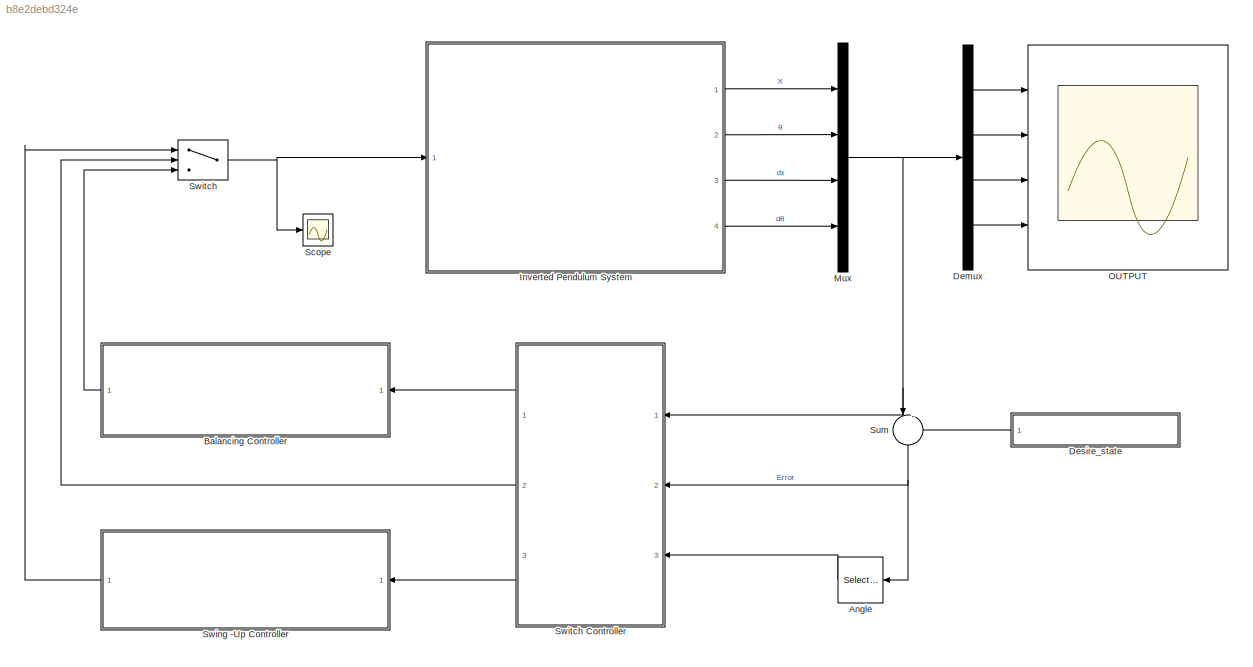
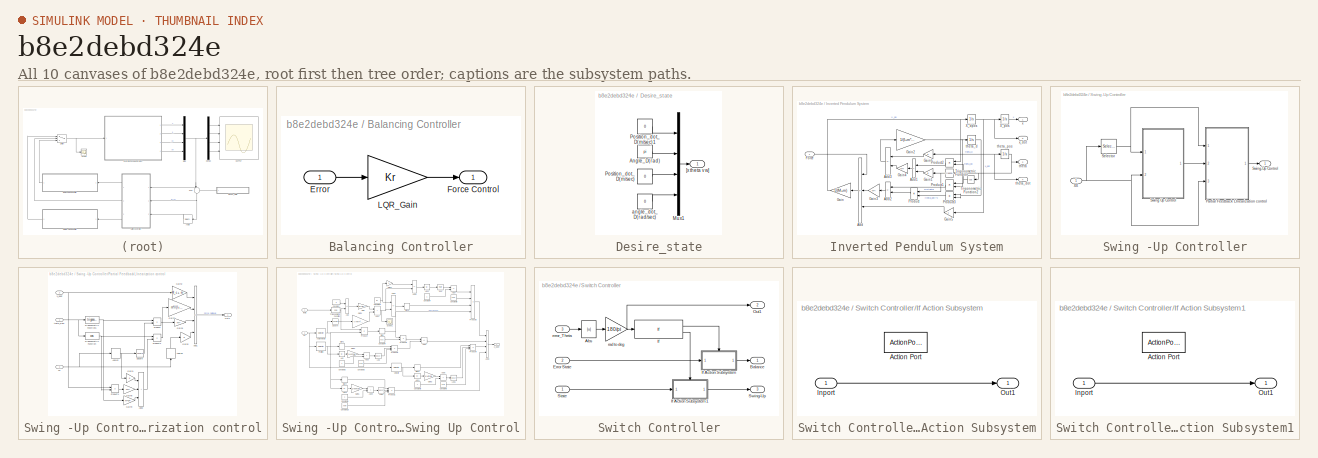
[diagram: thumbnail index - all 10 canvases of the model, root first then tree order]
MODEL slx_b8e2debd324e
KIND model
CONFIG AbsTol = auto
CONFIG EnableMultiTasking = off
CONFIG FixedStep = 0.01
CONFIG MaxStep = auto
CONFIG MinStep = auto
CONFIG RelTol = 1e-3
CONFIG SampleTimeConstraint = Unconstrained
CONFIG SolverName = VariableStepAuto
CONFIG StartTime = 0.0
CONFIG StopTime = 25
BLOCK [Selector] Angle
  IndexOptions = Index vector (dialog)
  Indices = [2]
  InputPortWidth = 4
  NameLocation = top
  OutputSizes = 1
  Ports = [1, 1]
BLOCK [SubSystem] Balancing Controller
  Ports = [1, 1]
  RequestExecContextInheritance = off
  ShowPortLabels = none
BLOCK [Inport] Balancing Controller/Error
BLOCK [Outport] Balancing Controller/Force Control
BLOCK [Gain] Balancing Controller/LQR_Gain
  Gain = Kr
  Multiplication = Matrix(K*u)
BLOCK [Demux] Demux
  Ports = [1, 4]
BLOCK [SubSystem] Desire_state
  NameLocation = top
  Ports = [0, 1]
  RequestExecContextInheritance = off
BLOCK [Constant] Desire_state/Angle_D(rad)
  Value = pi
BLOCK [Mux] Desire_state/Mux1
  DisplayOption = bar
  Ports = [4, 1]
BLOCK [Constant] Desire_state/Position_dot_D(m//sec)
  Value = 0
BLOCK [Constant] Desire_state/Position_dot_D(m//sec)1
  Value = 0
BLOCK [Outport] Desire_state/[x theta v w]
  VectorParamsAs1DForOutWhenUnconnected = off
BLOCK [Constant] Desire_state/angle_dot_D(rad//sec)
  Value = 0
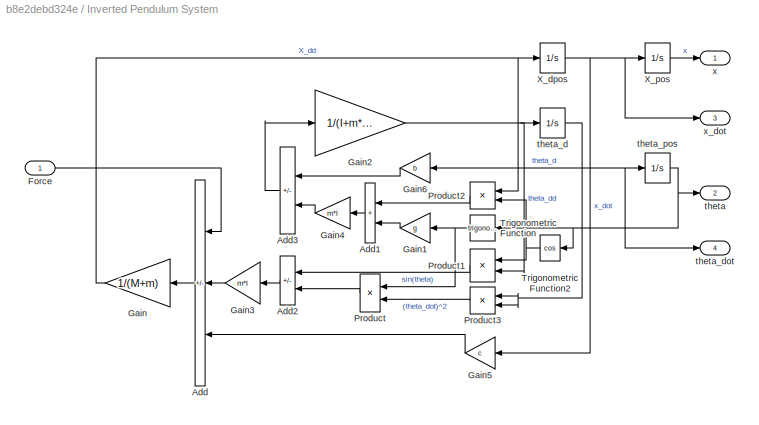
BLOCK [SubSystem] Inverted Pendulum System
  Ports = [1, 4]
  RequestExecContextInheritance = off
BLOCK [Sum] Inverted Pendulum System/Add
  IconShape = rectangular
  Inputs = ++-
  NameLocation = top
  Ports = [3, 1]
BLOCK [Sum] Inverted Pendulum System/Add1
  IconShape = rectangular
  NameLocation = top
  Ports = [2, 1]
BLOCK [Sum] Inverted Pendulum System/Add2
  IconShape = rectangular
  Inputs = -+
  NameLocation = top
  Ports = [2, 1]
BLOCK [Sum] Inverted Pendulum System/Add3
  IconShape = rectangular
  Inputs = --
  NameLocation = top
  Ports = [2, 1]
BLOCK [Inport] Inverted Pendulum System/Force
BLOCK [Gain] Inverted Pendulum System/Gain
  Gain = 1/(M+m)
  NameLocation = top
BLOCK [Gain] Inverted Pendulum System/Gain1
  Gain = g
  NameLocation = top
BLOCK [Gain] Inverted Pendulum System/Gain2
  Gain = 1/(I+m*(l^2))
BLOCK [Gain] Inverted Pendulum System/Gain3
  Gain = m*l
  NameLocation = top
BLOCK [Gain] Inverted Pendulum System/Gain4
  Gain = m*l
  NameLocation = top
BLOCK [Gain] Inverted Pendulum System/Gain5
  Gain = c
  NameLocation = top
BLOCK [Gain] Inverted Pendulum System/Gain6
  Gain = b
  NameLocation = top
BLOCK [Product] Inverted Pendulum System/Product
  NameLocation = top
  Ports = [2, 1]
BLOCK [Product] Inverted Pendulum System/Product1
  NameLocation = top
  Ports = [2, 1]
BLOCK [Product] Inverted Pendulum System/Product2
  NameLocation = top
  Ports = [2, 1]
BLOCK [Product] Inverted Pendulum System/Product3
  NameLocation = top
  Ports = [2, 1]
BLOCK [Trigonometry] Inverted Pendulum System/Trigonometric Function
  NameLocation = top
  Ports = [1, 1]
BLOCK [Trigonometry] Inverted Pendulum System/Trigonometric Function2
  NameLocation = top
  Operator = cos
  Ports = [1, 1]
BLOCK [Integrator] Inverted Pendulum System/X_dpos
  Ports = [1, 1]
BLOCK [Integrator] Inverted Pendulum System/X_pos
  InitialCondition = 0.001
  Ports = [1, 1]
BLOCK [Outport] Inverted Pendulum System/theta
  Port = 2
  VectorParamsAs1DForOutWhenUnconnected = off
BLOCK [Integrator] Inverted Pendulum System/theta_d
  Ports = [1, 1]
BLOCK [Outport] Inverted Pendulum System/theta_dot
  Port = 4
  VectorParamsAs1DForOutWhenUnconnected = off
BLOCK [Integrator] Inverted Pendulum System/theta_pos
  InitialCondition = -0.001*(pi/180)
  Ports = [1, 1]
BLOCK [Outport] Inverted Pendulum System/x
  VectorParamsAs1DForOutWhenUnconnected = off
BLOCK [Outport] Inverted Pendulum System/x_dot
  Port = 3
  VectorParamsAs1DForOutWhenUnconnected = off
BLOCK [Mux] Mux
  DisplayOption = bar
  Ports = [4, 1]
BLOCK [Scope] OUTPUT
  Floating = off
  NumInputPorts = 4
  Ports = [4]
  ScopeSpecificationString = Simulink.scopes.TimeScopeBlockCfg('CurrentConfiguration', extmgr.ConfigurationSet(extmgr.Configuration('Core','General UI',true,'FigureColor',[1 1 1]),extmgr.Configuration('Core','Source UI',true),extmgr.Configuration('Sources','WiredSimulink',true,'DataLoggingVariableName','ScopeData1','DataLogging',true,'DataLoggingSaveFormat','StructureWithTime'),extmgr.Configuration('Visuals','Time Domain',tru...<+4068ch>
BLOCK [Scope] Scope
  Floating = off
  NumInputPorts = 1
  Ports = [1]
  ScopeSpecificationString = Simulink.scopes.TimeScopeBlockCfg('CurrentConfiguration', extmgr.ConfigurationSet(extmgr.Configuration('Core','General UI',true),extmgr.Configuration('Core','Source UI',true),extmgr.Configuration('Sources','WiredSimulink',true,'DataLoggingVariableName','ScopeData2','DataLogging',true,'DataLoggingSaveFormat','StructureWithTime'),extmgr.Configuration('Visuals','Time Domain',true,'SerializedDisplays'...<+1462ch>
BLOCK [Sum] Sum
  Inputs = |-+
  NameLocation = left
  Ports = [2, 1]
BLOCK [SubSystem] Swing -Up Controller
  Ports = [1, 1]
  RequestExecContextInheritance = off
  ShowPortLabels = none
BLOCK [SubSystem] Swing -Up Controller/Partial Feedback LInearization control
  NameLocation = top
  Ports = [3, 1]
  RequestExecContextInheritance = off
BLOCK [Sum] Swing -Up Controller/Partial Feedback LInearization control/Add1
  IconShape = rectangular
  Inputs = +--+
  Ports = [4, 1]
BLOCK [Sum] Swing -Up Controller/Partial Feedback LInearization control/Add2
  IconShape = rectangular
  Inputs = +++
  Ports = [3, 1]
BLOCK [Selector] Swing -Up Controller/Partial Feedback LInearization control/Angle2
  IndexOptions = Index vector (dialog)
  Indices = [4]
  InputPortWidth = 4
  OutputSizes = 1
  Ports = [1, 1]
BLOCK [Selector] Swing -Up Controller/Partial Feedback LInearization control/Angle3
  IndexOptions = Index vector (dialog)
  Indices = [3]
  InputPortWidth = 4
  NameLocation = right
  OutputSizes = 1
  Ports = [1, 1]
BLOCK [Gain] Swing -Up Controller/Partial Feedback LInearization control/Gain1
  Gain = b
BLOCK [Gain] Swing -Up Controller/Partial Feedback LInearization control/Gain2
  Gain = M_c + m
BLOCK [Gain] Swing -Up Controller/Partial Feedback LInearization control/Gain5
  Gain = 0
BLOCK [Gain] Swing -Up Controller/Partial Feedback LInearization control/Gain6
  Gain = m*l
BLOCK [Gain] Swing -Up Controller/Partial Feedback LInearization control/Gain7
  Gain = m*l/(I+m*l^2)
BLOCK [Gain] Swing -Up Controller/Partial Feedback LInearization control/Gain8
  Gain = m*l
BLOCK [Gain] Swing -Up Controller/Partial Feedback LInearization control/Gain9
  Gain = m*g*l
BLOCK [Outport] Swing -Up Controller/Partial Feedback LInearization control/Out1
  NameLocation = top
  VectorParamsAs1DForOutWhenUnconnected = off
BLOCK [Product] Swing -Up Controller/Partial Feedback LInearization control/Product
  Ports = [2, 1]
BLOCK [Product] Swing -Up Controller/Partial Feedback LInearization control/Product1
  Ports = [2, 1]
BLOCK [Product] Swing -Up Controller/Partial Feedback LInearization control/Product2
  Ports = [2, 1]
BLOCK [Math] Swing -Up Controller/Partial Feedback LInearization control/Square
  Operator = square
  Ports = [1, 1]
  RndMeth = Zero
  SignedPower = on
BLOCK [Trigonometry] Swing -Up Controller/Partial Feedback LInearization control/Trigonometric Function
  Operator = cos
  Ports = [1, 1]
BLOCK [Trigonometry] Swing -Up Controller/Partial Feedback LInearization control/Trigonometric Function1
  Ports = [1, 1]
BLOCK [Inport] Swing -Up Controller/Partial Feedback LInearization control/XX
  Port = 3
BLOCK [Inport] Swing -Up Controller/Partial Feedback LInearization control/X_ddot
  Port = 2
BLOCK [Inport] Swing -Up Controller/Partial Feedback LInearization control/theta_sign
BLOCK [Selector] Swing -Up Controller/Selector
  IndexOptions = Index vector (dialog)
  Indices = [2]
  InputPortWidth = 4
  OutputSizes = 1
  Ports = [1, 1]
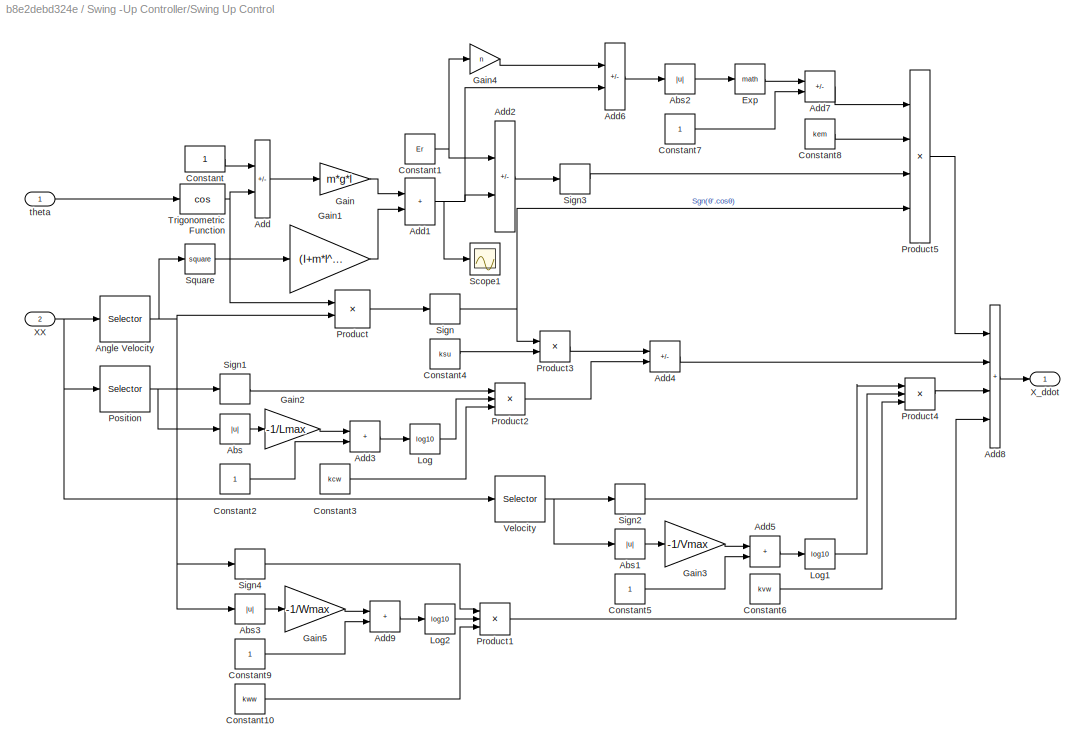
BLOCK [SubSystem] Swing -Up Controller/Swing Up Control
  Ports = [2, 1]
  RequestExecContextInheritance = off
BLOCK [Abs] Swing -Up Controller/Swing Up Control/Abs
  SaturateOnIntegerOverflow = off
BLOCK [Abs] Swing -Up Controller/Swing Up Control/Abs1
  SaturateOnIntegerOverflow = off
BLOCK [Abs] Swing -Up Controller/Swing Up Control/Abs2
  SaturateOnIntegerOverflow = off
BLOCK [Abs] Swing -Up Controller/Swing Up Control/Abs3
  SaturateOnIntegerOverflow = off
BLOCK [Sum] Swing -Up Controller/Swing Up Control/Add
  IconShape = rectangular
  Inputs = +-
  Ports = [2, 1]
BLOCK [Sum] Swing -Up Controller/Swing Up Control/Add1
  IconShape = rectangular
  Ports = [2, 1]
BLOCK [Sum] Swing -Up Controller/Swing Up Control/Add2
  IconShape = rectangular
  Inputs = -+
  Ports = [2, 1]
BLOCK [Sum] Swing -Up Controller/Swing Up Control/Add3
  IconShape = rectangular
  Ports = [2, 1]
BLOCK [Sum] Swing -Up Controller/Swing Up Control/Add4
  IconShape = rectangular
  Inputs = -+
  Ports = [2, 1]
BLOCK [Sum] Swing -Up Controller/Swing Up Control/Add5
  IconShape = rectangular
  Ports = [2, 1]
BLOCK [Sum] Swing -Up Controller/Swing Up Control/Add6
  IconShape = rectangular
  Inputs = -+
  Ports = [2, 1]
BLOCK [Sum] Swing -Up Controller/Swing Up Control/Add7
  IconShape = rectangular
  Inputs = +-
  Ports = [2, 1]
BLOCK [Sum] Swing -Up Controller/Swing Up Control/Add8
  IconShape = rectangular
  Inputs = 4
  Ports = [4, 1]
BLOCK [Sum] Swing -Up Controller/Swing Up Control/Add9
  IconShape = rectangular
  Ports = [2, 1]
BLOCK [Selector] Swing -Up Controller/Swing Up Control/Angle Velocity
  IndexOptions = Index vector (dialog)
  Indices = [4]
  InputPortWidth = 4
  OutputSizes = 1
  Ports = [1, 1]
BLOCK [Constant] Swing -Up Controller/Swing Up Control/Constant
BLOCK [Constant] Swing -Up Controller/Swing Up Control/Constant1
  Value = Er
BLOCK [Constant] Swing -Up Controller/Swing Up Control/Constant10
  Value = kww
BLOCK [Constant] Swing -Up Controller/Swing Up Control/Constant2
BLOCK [Constant] Swing -Up Controller/Swing Up Control/Constant3
  Value = kcw
BLOCK [Constant] Swing -Up Controller/Swing Up Control/Constant4
  Value = ksu
BLOCK [Constant] Swing -Up Controller/Swing Up Control/Constant5
BLOCK [Constant] Swing -Up Controller/Swing Up Control/Constant6
  Value = kvw
BLOCK [Constant] Swing -Up Controller/Swing Up Control/Constant7
BLOCK [Constant] Swing -Up Controller/Swing Up Control/Constant8
  Value = kem
BLOCK [Constant] Swing -Up Controller/Swing Up Control/Constant9
BLOCK [Math] Swing -Up Controller/Swing Up Control/Exp
  Ports = [1, 1]
BLOCK [Gain] Swing -Up Controller/Swing Up Control/Gain
  Gain = m*g*l
BLOCK [Gain] Swing -Up Controller/Swing Up Control/Gain1
  Gain = (I+m*l^2)/2
BLOCK [Gain] Swing -Up Controller/Swing Up Control/Gain2
  Gain = -1/Lmax
BLOCK [Gain] Swing -Up Controller/Swing Up Control/Gain3
  Gain = -1/Vmax
BLOCK [Gain] Swing -Up Controller/Swing Up Control/Gain4
  Gain = n
BLOCK [Gain] Swing -Up Controller/Swing Up Control/Gain5
  Gain = -1/Wmax
BLOCK [Math] Swing -Up Controller/Swing Up Control/Log
  Operator = log10
  Ports = [1, 1]
BLOCK [Math] Swing -Up Controller/Swing Up Control/Log1
  Operator = log10
  Ports = [1, 1]
BLOCK [Math] Swing -Up Controller/Swing Up Control/Log2
  Operator = log10
  Ports = [1, 1]
BLOCK [Selector] Swing -Up Controller/Swing Up Control/Position
  IndexOptions = Index vector (dialog)
  Indices = [1]
  InputPortWidth = 4
  OutputSizes = 1
  Ports = [1, 1]
BLOCK [Product] Swing -Up Controller/Swing Up Control/Product
  Ports = [2, 1]
BLOCK [Product] Swing -Up Controller/Swing Up Control/Product1
  Inputs = 3
  Ports = [3, 1]
BLOCK [Product] Swing -Up Controller/Swing Up Control/Product2
  Inputs = 3
  Ports = [3, 1]
BLOCK [Product] Swing -Up Controller/Swing Up Control/Product3
  Ports = [2, 1]
BLOCK [Product] Swing -Up Controller/Swing Up Control/Product4
  Inputs = 3
  Ports = [3, 1]
BLOCK [Product] Swing -Up Controller/Swing Up Control/Product5
  Inputs = 4
  Ports = [4, 1]
BLOCK [Scope] Swing -Up Controller/Swing Up Control/Scope1
  Floating = off
  NumInputPorts = 1
  Ports = [1]
  ScopeSpecificationString = Simulink.scopes.TimeScopeBlockCfg('CurrentConfiguration', extmgr.ConfigurationSet(extmgr.Configuration('Core','General UI',true),extmgr.Configuration('Core','Source UI',true),extmgr.Configuration('Sources','WiredSimulink',true,'DataLoggingVariableName','ScopeData1'),extmgr.Configuration('Visuals','Time Domain',true,'SerializedDisplays',{struct('MinYLimReal','-1.05319','MaxYLimReal','9.47873','YLab...<+1415ch>
BLOCK [Signum] Swing -Up Controller/Swing Up Control/Sign
BLOCK [Signum] Swing -Up Controller/Swing Up Control/Sign1
BLOCK [Signum] Swing -Up Controller/Swing Up Control/Sign2
BLOCK [Signum] Swing -Up Controller/Swing Up Control/Sign3
BLOCK [Signum] Swing -Up Controller/Swing Up Control/Sign4
BLOCK [Math] Swing -Up Controller/Swing Up Control/Square
  Operator = square
  Ports = [1, 1]
  RndMeth = Zero
  SignedPower = on
BLOCK [Trigonometry] Swing -Up Controller/Swing Up Control/Trigonometric Function
  Operator = cos
  Ports = [1, 1]
BLOCK [Selector] Swing -Up Controller/Swing Up Control/Velocity
  IndexOptions = Index vector (dialog)
  Indices = [3]
  InputPortWidth = 4
  OutputSizes = 1
  Ports = [1, 1]
BLOCK [Inport] Swing -Up Controller/Swing Up Control/XX
  NameLocation = top
  Port = 2
BLOCK [Outport] Swing -Up Controller/Swing Up Control/X_ddot
BLOCK [Inport] Swing -Up Controller/Swing Up Control/theta
BLOCK [Outport] Swing -Up Controller/Swing-Up Control
BLOCK [Inport] Swing -Up Controller/XX
BLOCK [Switch] Switch
  Criteria = u2 > Threshold
  InputSameDT = off
  SaturateOnIntegerOverflow = off
  Threshold = 10
BLOCK [SubSystem] Switch Controller
  NameLocation = top
  Ports = [3, 3]
  RequestExecContextInheritance = off
BLOCK [Abs] Switch Controller/Abs
  SaturateOnIntegerOverflow = off
BLOCK [Outport] Switch Controller/Balance
BLOCK [Inport] Switch Controller/Error State
  Port = 2
BLOCK [If] Switch Controller/If
  IfExpression = (u1 <= 10)
  Ports = [1, 2]
BLOCK [SubSystem] Switch Controller/If Action Subsystem
  Ports = [1, 1, 0, 0, 0, 0, 0, 1]
  RequestExecContextInheritance = off
  TreatAsAtomicUnit = on
BLOCK [ActionPort] Switch Controller/If Action Subsystem/Action Port
  ActionPortLabel = if((u1 <= 10))
  InitializeStates = reset
BLOCK [Inport] Switch Controller/If Action Subsystem/Inport
BLOCK [Outport] Switch Controller/If Action Subsystem/Out1
  VectorParamsAs1DForOutWhenUnconnected = off
BLOCK [SubSystem] Switch Controller/If Action Subsystem1
  Ports = [1, 1, 0, 0, 0, 0, 0, 1]
  RequestExecContextInheritance = off
  TreatAsAtomicUnit = on
BLOCK [ActionPort] Switch Controller/If Action Subsystem1/Action Port
  ActionPortLabel = else
  InitializeStates = reset
BLOCK [Inport] Switch Controller/If Action Subsystem1/Inport
BLOCK [Outport] Switch Controller/If Action Subsystem1/Out1
  VectorParamsAs1DForOutWhenUnconnected = off
BLOCK [Outport] Switch Controller/Out1
  Port = 2
BLOCK [Inport] Switch Controller/State
BLOCK [Outport] Switch Controller/Swing-Up
  Port = 3
BLOCK [Inport] Switch Controller/error_Theta
  Port = 3
BLOCK [Gain] Switch Controller/rad to deg
  Gain = 180/pi
LINE Angle:1 -> Switch Controller:3
LINE Balancing Controller/Error:1 -> Balancing Controller/LQR_Gain:1
LINE Balancing Controller/LQR_Gain:1 -> Balancing Controller/Force Control:1
LINE Balancing Controller:1 -> Switch:3
LINE Demux:1 -> OUTPUT:1
LINE Demux:2 -> OUTPUT:2
LINE Demux:3 -> OUTPUT:3
LINE Demux:4 -> OUTPUT:4
LINE Desire_state/Angle_D(rad):1 -> Desire_state/Mux1:2
LINE Desire_state/Mux1:1 -> Desire_state/[x theta v w]:1
LINE Desire_state/Position_dot_D(m//sec)1:1 -> Desire_state/Mux1:1
LINE Desire_state/Position_dot_D(m//sec):1 -> Desire_state/Mux1:3
LINE Desire_state/angle_dot_D(rad//sec):1 -> Desire_state/Mux1:4
LINE Desire_state:1 -> Sum:2
LINE Inverted Pendulum System/Add1:1 -> Inverted Pendulum System/Gain4:1
LINE Inverted Pendulum System/Add2:1 -> Inverted Pendulum System/Gain3:1
LINE Inverted Pendulum System/Add3:1 -> Inverted Pendulum System/Gain2:1
LINE Inverted Pendulum System/Add:1 -> Inverted Pendulum System/Gain:1
LINE Inverted Pendulum System/Force:1 -> Inverted Pendulum System/Add:1
LINE Inverted Pendulum System/Gain1:1 -> Inverted Pendulum System/Add1:2
NET Inverted Pendulum System/Gain2:1 -> Inverted Pendulum System/Product1:2, Inverted Pendulum System/theta_d:1
LINE Inverted Pendulum System/Gain3:1 -> Inverted Pendulum System/Add:2
LINE Inverted Pendulum System/Gain4:1 -> Inverted Pendulum System/Add3:2
LINE Inverted Pendulum System/Gain5:1 -> Inverted Pendulum System/Add:3
LINE Inverted Pendulum System/Gain6:1 -> Inverted Pendulum System/Add3:1
NET Inverted Pendulum System/Gain:1 -> Inverted Pendulum System/Product2:1, Inverted Pendulum System/X_dpos:1
LINE Inverted Pendulum System/Product1:1 -> Inverted Pendulum System/Add2:1
LINE Inverted Pendulum System/Product2:1 -> Inverted Pendulum System/Add1:1
LINE Inverted Pendulum System/Product3:1 -> Inverted Pendulum System/Product:2
LINE Inverted Pendulum System/Product:1 -> Inverted Pendulum System/Add2:2
NET Inverted Pendulum System/Trigonometric Function2:1 -> Inverted Pendulum System/Product1:1, Inverted Pendulum System/Product2:2
NET Inverted Pendulum System/Trigonometric Function:1 -> Inverted Pendulum System/Gain1:1, Inverted Pendulum System/Product:1
NET Inverted Pendulum System/X_dpos:1 -> Inverted Pendulum System/Gain5:1, Inverted Pendulum System/X_pos:1, Inverted Pendulum System/x_dot:1
LINE Inverted Pendulum System/X_pos:1 -> Inverted Pendulum System/x:1
NET Inverted Pendulum System/theta_d:1 -> Inverted Pendulum System/Gain6:1, Inverted Pendulum System/Product3:1, Inverted Pendulum System/Product3:2, Inverted Pendulum System/theta_dot:1, Inverted Pendulum System/theta_pos:1
NET Inverted Pendulum System/theta_pos:1 -> Inverted Pendulum System/Trigonometric Function2:1, Inverted Pendulum System/Trigonometric Function:1, Inverted Pendulum System/theta:1
LINE Inverted Pendulum System:1 -> Mux:1
LINE Inverted Pendulum System:2 -> Mux:2
LINE Inverted Pendulum System:3 -> Mux:3
LINE Inverted Pendulum System:4 -> Mux:4
NET Mux:1 -> Demux:1, Sum:1, Switch Controller:1
NET Sum:1 -> Angle:1, Switch Controller:2
LINE Swing -Up Controller/Partial Feedback LInearization control/Add1:1 -> Swing -Up Controller/Partial Feedback LInearization control/Out1:1
LINE Swing -Up Controller/Partial Feedback LInearization control/Add2:1 -> Swing -Up Controller/Partial Feedback LInearization control/Product2:2
NET Swing -Up Controller/Partial Feedback LInearization control/Angle2:1 -> Swing -Up Controller/Partial Feedback LInearization control/Gain1:1, Swing -Up Controller/Partial Feedback LInearization control/Square:1
LINE Swing -Up Controller/Partial Feedback LInearization control/Angle3:1 -> Swing -Up Controller/Partial Feedback LInearization control/Gain5:1
LINE Swing -Up Controller/Partial Feedback LInearization control/Gain1:1 -> Swing -Up Controller/Partial Feedback LInearization control/Add2:1
LINE Swing -Up Controller/Partial Feedback LInearization control/Gain2:1 -> Swing -Up Controller/Partial Feedback LInearization control/Add1:1
LINE Swing -Up Controller/Partial Feedback LInearization control/Gain5:1 -> Swing -Up Controller/Partial Feedback LInearization control/Add1:4
LINE Swing -Up Controller/Partial Feedback LInearization control/Gain6:1 -> Swing -Up Controller/Partial Feedback LInearization control/Add1:3
LINE Swing -Up Controller/Partial Feedback LInearization control/Gain7:1 -> Swing -Up Controller/Partial Feedback LInearization control/Add1:2
LINE Swing -Up Controller/Partial Feedback LInearization control/Gain8:1 -> Swing -Up Controller/Partial Feedback LInearization control/Add2:2
LINE Swing -Up Controller/Partial Feedback LInearization control/Gain9:1 -> Swing -Up Controller/Partial Feedback LInearization control/Add2:3
LINE Swing -Up Controller/Partial Feedback LInearization control/Product1:1 -> Swing -Up Controller/Partial Feedback LInearization control/Gain8:1
LINE Swing -Up Controller/Partial Feedback LInearization control/Product2:1 -> Swing -Up Controller/Partial Feedback LInearization control/Gain7:1
LINE Swing -Up Controller/Partial Feedback LInearization control/Product:1 -> Swing -Up Controller/Partial Feedback LInearization control/Gain6:1
LINE Swing -Up Controller/Partial Feedback LInearization control/Square:1 -> Swing -Up Controller/Partial Feedback LInearization control/Product:2
NET Swing -Up Controller/Partial Feedback LInearization control/Trigonometric Function1:1 -> Swing -Up Controller/Partial Feedback LInearization control/Gain9:1, Swing -Up Controller/Partial Feedback LInearization control/Product:1
NET Swing -Up Controller/Partial Feedback LInearization control/Trigonometric Function:1 -> Swing -Up Controller/Partial Feedback LInearization control/Product1:2, Swing -Up Controller/Partial Feedback LInearization control/Product2:1
NET Swing -Up Controller/Partial Feedback LInearization control/XX:1 -> Swing -Up Controller/Partial Feedback LInearization control/Angle2:1, Swing -Up Controller/Partial Feedback LInearization control/Angle3:1
NET Swing -Up Controller/Partial Feedback LInearization control/X_ddot:1 -> Swing -Up Controller/Partial Feedback LInearization control/Gain2:1, Swing -Up Controller/Partial Feedback LInearization control/Product1:1
NET Swing -Up Controller/Partial Feedback LInearization control/theta_sign:1 -> Swing -Up Controller/Partial Feedback LInearization control/Trigonometric Function1:1, Swing -Up Controller/Partial Feedback LInearization control/Trigonometric Function:1
LINE Swing -Up Controller/Partial Feedback LInearization control:1 -> Swing -Up Controller/Swing-Up Control:1
NET Swing -Up Controller/Selector:1 -> Swing -Up Controller/Partial Feedback LInearization control:1, Swing -Up Controller/Swing Up Control:1
LINE Swing -Up Controller/Swing Up Control/Abs1:1 -> Swing -Up Controller/Swing Up Control/Gain3:1
LINE Swing -Up Controller/Swing Up Control/Abs2:1 -> Swing -Up Controller/Swing Up Control/Exp:1
LINE Swing -Up Controller/Swing Up Control/Abs3:1 -> Swing -Up Controller/Swing Up Control/Gain5:1
LINE Swing -Up Controller/Swing Up Control/Abs:1 -> Swing -Up Controller/Swing Up Control/Gain2:1
NET Swing -Up Controller/Swing Up Control/Add1:1 -> Swing -Up Controller/Swing Up Control/Add2:2, Swing -Up Controller/Swing Up Control/Add6:2, Swing -Up Controller/Swing Up Control/Scope1:1
LINE Swing -Up Controller/Swing Up Control/Add2:1 -> Swing -Up Controller/Swing Up Control/Sign3:1
LINE Swing -Up Controller/Swing Up Control/Add3:1 -> Swing -Up Controller/Swing Up Control/Log:1
LINE Swing -Up Controller/Swing Up Control/Add4:1 -> Swing -Up Controller/Swing Up Control/Add8:2
LINE Swing -Up Controller/Swing Up Control/Add5:1 -> Swing -Up Controller/Swing Up Control/Log1:1
LINE Swing -Up Controller/Swing Up Control/Add6:1 -> Swing -Up Controller/Swing Up Control/Abs2:1
LINE Swing -Up Controller/Swing Up Control/Add7:1 -> Swing -Up Controller/Swing Up Control/Product5:1
LINE Swing -Up Controller/Swing Up Control/Add8:1 -> Swing -Up Controller/Swing Up Control/X_ddot:1
LINE Swing -Up Controller/Swing Up Control/Add9:1 -> Swing -Up Controller/Swing Up Control/Log2:1
LINE Swing -Up Controller/Swing Up Control/Add:1 -> Swing -Up Controller/Swing Up Control/Gain:1
NET Swing -Up Controller/Swing Up Control/Angle Velocity:1 -> Swing -Up Controller/Swing Up Control/Abs3:1, Swing -Up Controller/Swing Up Control/Product:2, Swing -Up Controller/Swing Up Control/Sign4:1, Swing -Up Controller/Swing Up Control/Square:1
LINE Swing -Up Controller/Swing Up Control/Constant10:1 -> Swing -Up Controller/Swing Up Control/Product1:3
NET Swing -Up Controller/Swing Up Control/Constant1:1 -> Swing -Up Controller/Swing Up Control/Add2:1, Swing -Up Controller/Swing Up Control/Gain4:1
LINE Swing -Up Controller/Swing Up Control/Constant2:1 -> Swing -Up Controller/Swing Up Control/Add3:2
LINE Swing -Up Controller/Swing Up Control/Constant3:1 -> Swing -Up Controller/Swing Up Control/Product2:3
LINE Swing -Up Controller/Swing Up Control/Constant4:1 -> Swing -Up Controller/Swing Up Control/Product3:2
LINE Swing -Up Controller/Swing Up Control/Constant5:1 -> Swing -Up Controller/Swing Up Control/Add5:2
LINE Swing -Up Controller/Swing Up Control/Constant6:1 -> Swing -Up Controller/Swing Up Control/Product4:3
LINE Swing -Up Controller/Swing Up Control/Constant7:1 -> Swing -Up Controller/Swing Up Control/Add7:2
LINE Swing -Up Controller/Swing Up Control/Constant8:1 -> Swing -Up Controller/Swing Up Control/Product5:2
LINE Swing -Up Controller/Swing Up Control/Constant9:1 -> Swing -Up Controller/Swing Up Control/Add9:2
LINE Swing -Up Controller/Swing Up Control/Constant:1 -> Swing -Up Controller/Swing Up Control/Add:1
LINE Swing -Up Controller/Swing Up Control/Exp:1 -> Swing -Up Controller/Swing Up Control/Add7:1
LINE Swing -Up Controller/Swing Up Control/Gain1:1 -> Swing -Up Controller/Swing Up Control/Add1:2
LINE Swing -Up Controller/Swing Up Control/Gain2:1 -> Swing -Up Controller/Swing Up Control/Add3:1
LINE Swing -Up Controller/Swing Up Control/Gain3:1 -> Swing -Up Controller/Swing Up Control/Add5:1
LINE Swing -Up Controller/Swing Up Control/Gain4:1 -> Swing -Up Controller/Swing Up Control/Add6:1
LINE Swing -Up Controller/Swing Up Control/Gain5:1 -> Swing -Up Controller/Swing Up Control/Add9:1
LINE Swing -Up Controller/Swing Up Control/Gain:1 -> Swing -Up Controller/Swing Up Control/Add1:1
LINE Swing -Up Controller/Swing Up Control/Log1:1 -> Swing -Up Controller/Swing Up Control/Product4:2
LINE Swing -Up Controller/Swing Up Control/Log2:1 -> Swing -Up Controller/Swing Up Control/Product1:2
LINE Swing -Up Controller/Swing Up Control/Log:1 -> Swing -Up Controller/Swing Up Control/Product2:2
NET Swing -Up Controller/Swing Up Control/Position:1 -> Swing -Up Controller/Swing Up Control/Abs:1, Swing -Up Controller/Swing Up Control/Sign1:1
LINE Swing -Up Controller/Swing Up Control/Product1:1 -> Swing -Up Controller/Swing Up Control/Add8:4
LINE Swing -Up Controller/Swing Up Control/Product2:1 -> Swing -Up Controller/Swing Up Control/Add4:2
LINE Swing -Up Controller/Swing Up Control/Product3:1 -> Swing -Up Controller/Swing Up Control/Add4:1
LINE Swing -Up Controller/Swing Up Control/Product4:1 -> Swing -Up Controller/Swing Up Control/Add8:3
LINE Swing -Up Controller/Swing Up Control/Product5:1 -> Swing -Up Controller/Swing Up Control/Add8:1
LINE Swing -Up Controller/Swing Up Control/Product:1 -> Swing -Up Controller/Swing Up Control/Sign:1
LINE Swing -Up Controller/Swing Up Control/Sign1:1 -> Swing -Up Controller/Swing Up Control/Product2:1
LINE Swing -Up Controller/Swing Up Control/Sign2:1 -> Swing -Up Controller/Swing Up Control/Product4:1
LINE Swing -Up Controller/Swing Up Control/Sign3:1 -> Swing -Up Controller/Swing Up Control/Product5:3
LINE Swing -Up Controller/Swing Up Control/Sign4:1 -> Swing -Up Controller/Swing Up Control/Product1:1
NET Swing -Up Controller/Swing Up Control/Sign:1 -> Swing -Up Controller/Swing Up Control/Product3:1, Swing -Up Controller/Swing Up Control/Product5:4
LINE Swing -Up Controller/Swing Up Control/Square:1 -> Swing -Up Controller/Swing Up Control/Gain1:1
NET Swing -Up Controller/Swing Up Control/Trigonometric Function:1 -> Swing -Up Controller/Swing Up Control/Add:2, Swing -Up Controller/Swing Up Control/Product:1
NET Swing -Up Controller/Swing Up Control/Velocity:1 -> Swing -Up Controller/Swing Up Control/Abs1:1, Swing -Up Controller/Swing Up Control/Sign2:1
NET Swing -Up Controller/Swing Up Control/XX:1 -> Swing -Up Controller/Swing Up Control/Angle Velocity:1, Swing -Up Controller/Swing Up Control/Position:1, Swing -Up Controller/Swing Up Control/Velocity:1
LINE Swing -Up Controller/Swing Up Control/theta:1 -> Swing -Up Controller/Swing Up Control/Trigonometric Function:1
LINE Swing -Up Controller/Swing Up Control:1 -> Swing -Up Controller/Partial Feedback LInearization control:2
NET Swing -Up Controller/XX:1 -> Swing -Up Controller/Partial Feedback LInearization control:3, Swing -Up Controller/Selector:1, Swing -Up Controller/Swing Up Control:2
LINE Swing -Up Controller:1 -> Switch:1
LINE Switch Controller/Abs:1 -> Switch Controller/rad to deg:1
LINE Switch Controller/Error State:1 -> Switch Controller/If Action Subsystem:1
LINE Switch Controller/If Action Subsystem/Inport:1 -> Switch Controller/If Action Subsystem/Out1:1
LINE Switch Controller/If Action Subsystem1/Inport:1 -> Switch Controller/If Action Subsystem1/Out1:1
LINE Switch Controller/If Action Subsystem1:1 -> Switch Controller/Swing-Up:1
LINE Switch Controller/If Action Subsystem:1 -> Switch Controller/Balance:1
LINE Switch Controller/If:1 -> Switch Controller/If Action Subsystem:ifaction
LINE Switch Controller/If:2 -> Switch Controller/If Action Subsystem1:ifaction
LINE Switch Controller/State:1 -> Switch Controller/If Action Subsystem1:1
LINE Switch Controller/error_Theta:1 -> Switch Controller/Abs:1
NET Switch Controller/rad to deg:1 -> Switch Controller/If:1, Switch Controller/Out1:1
LINE Switch Controller:1 -> Balancing Controller:1
LINE Switch Controller:2 -> Switch:2
LINE Switch Controller:3 -> Swing -Up Controller:1
NET Switch:1 -> Inverted Pendulum System:1, Scope:1
note: NET lines group one-source signal fan-out (src -> all destinations, sorted); 1:1 wires keep LINE
